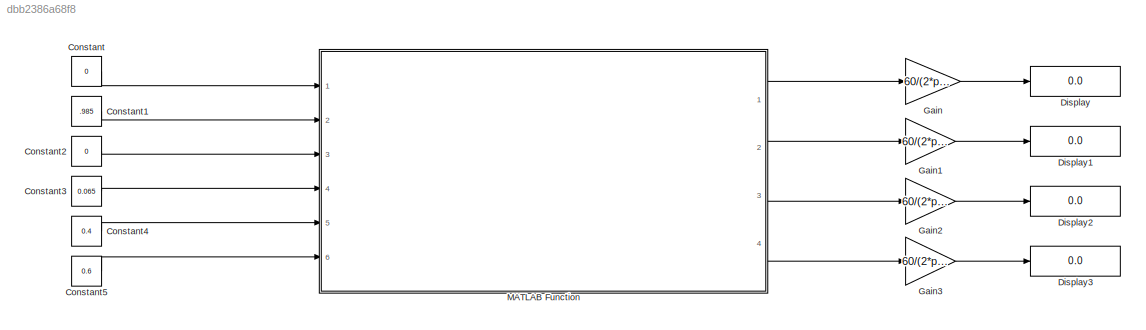
MODEL slx_dbb2386a68f8
KIND model
CONFIG AbsTol = auto
CONFIG EnableMultiTasking = off
CONFIG FixedStep = auto
CONFIG MaxStep = auto
CONFIG MinStep = auto
CONFIG RelTol = 1e-3
CONFIG SampleTimeConstraint = Unconstrained
CONFIG SolverName = VariableStepAuto
CONFIG StartTime = 0.0
CONFIG StopTime = 10.0
BLOCK [Constant] Constant
  Value = 0
BLOCK [Constant] Constant1
  Value = .985
BLOCK [Constant] Constant2
  Value = 0
BLOCK [Constant] Constant3
  Value = 0.065
BLOCK [Constant] Constant4
  Value = 0.4
BLOCK [Constant] Constant5
  Value = 0.6
BLOCK [Display] Display
  Decimation = 1
  Ports = [1]
BLOCK [Display] Display1
  Decimation = 1
  Ports = [1]
BLOCK [Display] Display2
  Decimation = 1
  Ports = [1]
BLOCK [Display] Display3
  Decimation = 1
  Ports = [1]
BLOCK [Gain] Gain
  Gain = 60/(2*pi)
BLOCK [Gain] Gain1
  Gain = 60/(2*pi)
BLOCK [Gain] Gain2
  Gain = 60/(2*pi)
BLOCK [Gain] Gain3
  Gain = 60/(2*pi)
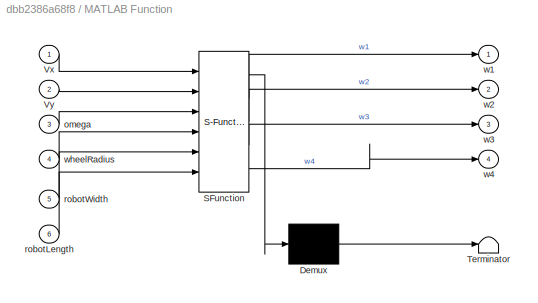
BLOCK [SubSystem] MATLAB Function
  ErrorFcn = Stateflow.Translate.translate
  PermitHierarchicalResolution = ExplicitOnly
  Ports = [6, 4]
  RequestExecContextInheritance = off
  SFBlockType = MATLAB Function
  TreatAsAtomicUnit = on
BLOCK [Demux] MATLAB Function/ Demux 
  Outputs = 1
  Ports = [1, 1]
BLOCK [S-Function] MATLAB Function/ SFunction 
  EnableBusSupport = on
  FunctionName = sf_sfun
  PortCounts = [6 5]
  Ports = [6, 5]
  SFcnIsStateOwnerBlock = off
  SFunctionDeploymentMode = off
  Tag = Stateflow S-Function 2
BLOCK [Terminator] MATLAB Function/ Terminator 
BLOCK [Inport] MATLAB Function/Vx
BLOCK [Inport] MATLAB Function/Vy
  Port = 2
BLOCK [Inport] MATLAB Function/omega
  Port = 3
BLOCK [Inport] MATLAB Function/robotLength
  Port = 6
BLOCK [Inport] MATLAB Function/robotWidth
  Port = 5
BLOCK [Outport] MATLAB Function/w1
BLOCK [Outport] MATLAB Function/w2
  Port = 2
BLOCK [Outport] MATLAB Function/w3
  Port = 3
BLOCK [Outport] MATLAB Function/w4
  Port = 4
BLOCK [Inport] MATLAB Function/wheelRadius
  Port = 4
LINE Constant1:1 -> MATLAB Function:2
LINE Constant2:1 -> MATLAB Function:3
LINE Constant3:1 -> MATLAB Function:4
LINE Constant4:1 -> MATLAB Function:5
LINE Constant5:1 -> MATLAB Function:6
LINE Constant:1 -> MATLAB Function:1
LINE Gain1:1 -> Display1:1
LINE Gain2:1 -> Display2:1
LINE Gain3:1 -> Display3:1
LINE Gain:1 -> Display:1
LINE MATLAB Function:1 -> Gain:1
LINE MATLAB Function:2 -> Gain1:1
LINE MATLAB Function:3 -> Gain2:1
LINE MATLAB Function:4 -> Gain3:1
CHART MATLAB Function states=1 transitions=1
  STATE_LABEL 'eML_blk_kernel()'
  STATE_LABEL 'SCRIPT:\nfunction [w1, w2, w3, w4] = mecanumReverseKinematics(Vx, Vy, omega, wheelRadius, robotWidth, robotLength)\n    % Reverse Kinematics for Mecanum Wheeled Robot\n    R = wheelRadius;\n    L = robotWidth / 2;\n    d = robotLength / 2;\n    o=L+d;\n\n    M = [\n         1   ,-1  ,-o ;\n         1   ,1   , o ;\n         1   ,1   ,-o ;\n         1   ,-1  ,-o ;\n        \n    ];\n\n    X_dot = [Vx ; Vy ; omega];...<+90ch>'
CHART  states=0 transitions=0
